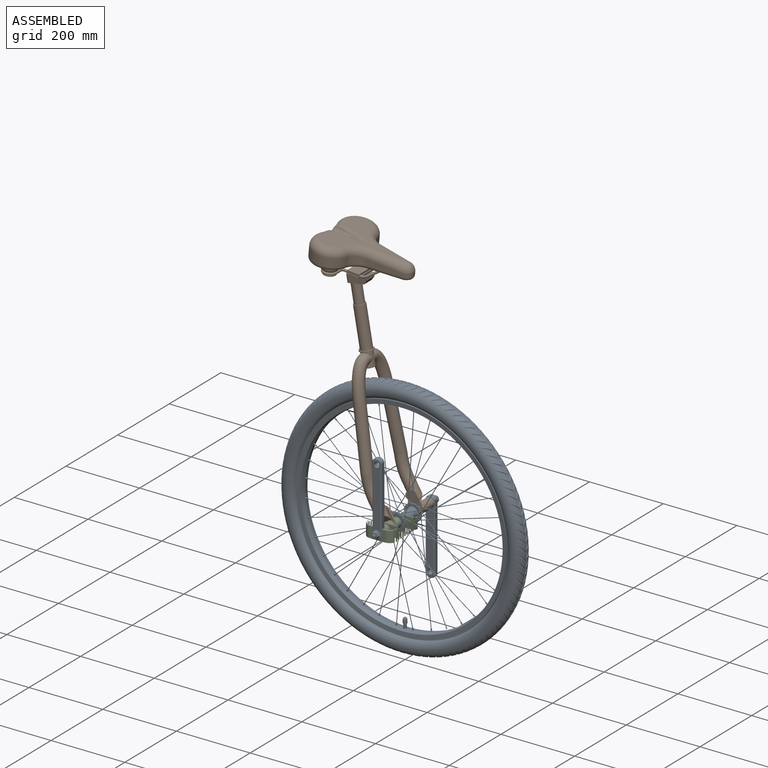
[diagram: assembled view]
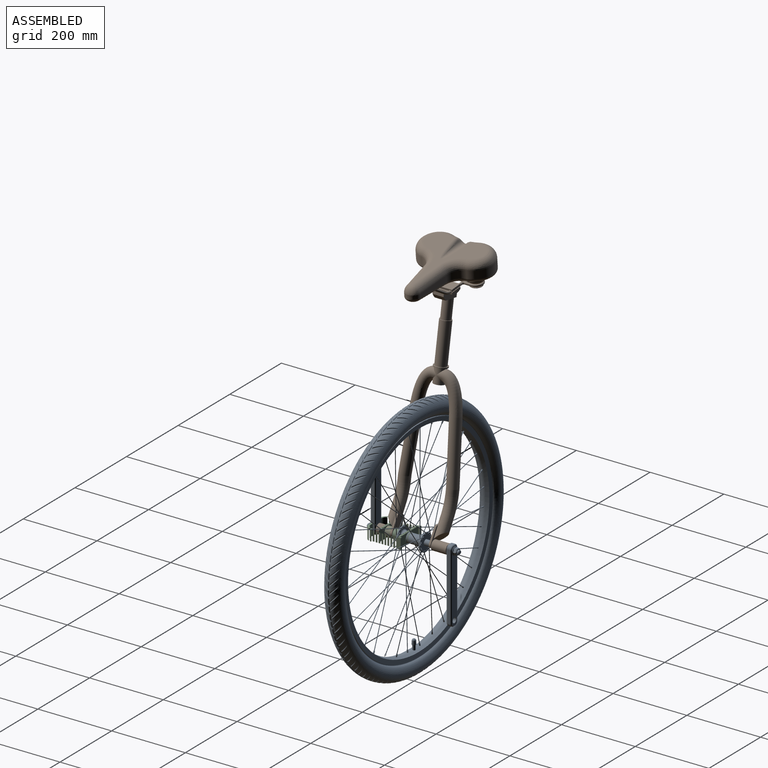
[diagram: assembled view, second angle]
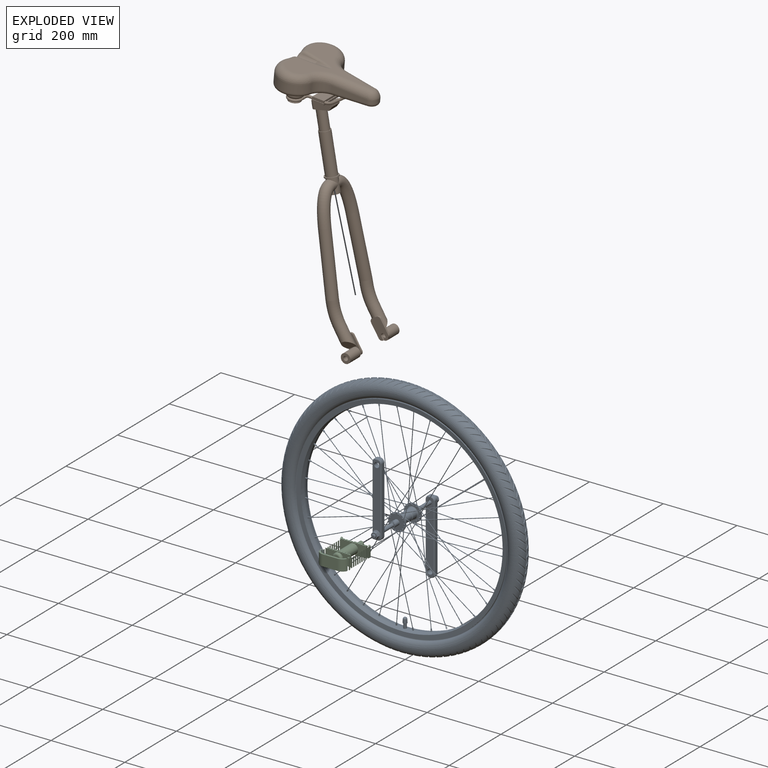
[diagram: exploded view]
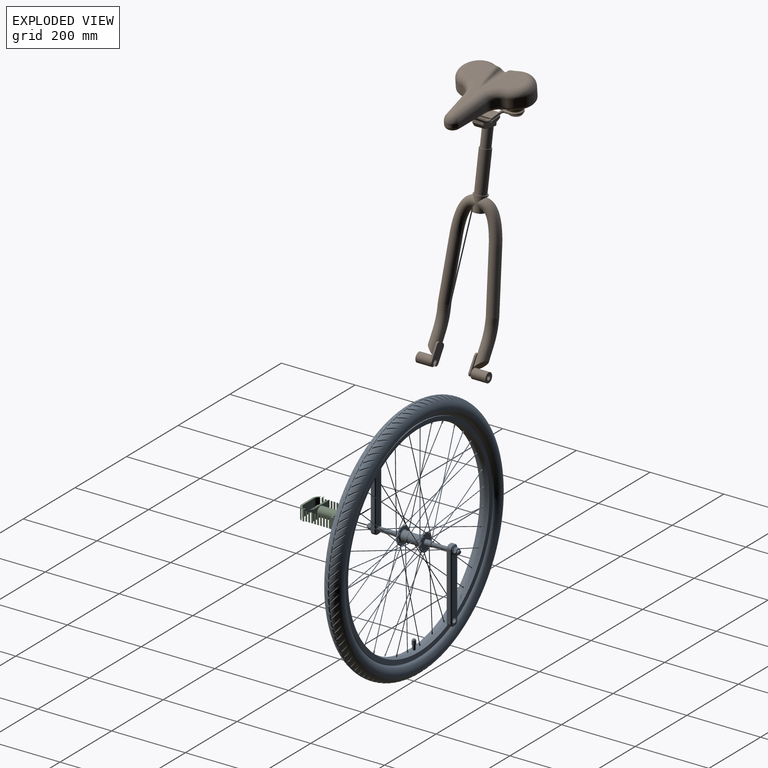
[diagram: exploded view, second angle]
FCSTD DOCUMENT  (FreeCAD 0.21R31917 (Git))
Label: 251 - MONOCYCLE
License: All rights reserved
LicenseURL: http://en.wikipedia.org/wiki/All_rights_reserved
objects: PartDesign::CoordinateSystem×6, App::Part×4, App::Link×4, Part::FeaturePython×3, App::DocumentObjectGroup×3, App::FeaturePython×1
note: 9 computed .brp shape members not serialized (recipe doc carries the construction recipe); baked Part::Feature solids carry a one-line shape summary decoded from their .brp

FEATURE [Part::FeaturePython] b_1__RODA_CJ_001_  label="1- RODA_CJ_001"  # a2plus imported part (geometry in sourceFile) (typed FeaturePython)
  a2p_Version = 0.4.60d
  fixedPosition = true
  objectType = a2pPart
  sourceFile = ./1- RODA_CJ.FCStd
  subassemblyImport = false
  timeLastImport = 1.67745e+09
  updateColors = true
FEATURE [Part::FeaturePython] b_2___GARFO_SELIM_001_  label="2 - GARFO+SELIM_001"  # a2plus imported part (geometry in sourceFile) (typed FeaturePython)
  a2p_Version = 0.4.60d
  fixedPosition = false
  objectType = a2pPart
  sourceFile = ./2 - GARFO+SELIM.FCStd
  subassemblyImport = false
  timeLastImport = 1.67745e+09
  updateColors = true
FEATURE [Part::FeaturePython] b_3__PEDAL_001_  label="3- PEDAL_001"  # a2plus imported part (geometry in sourceFile) (typed FeaturePython)
  a2p_Version = 0.4.60d
  fixedPosition = false
  objectType = a2pPart
  sourceFile = ./3- PEDAL.FCStd
  subassemblyImport = false
  timeLastImport = 1.67744e+09
  updateColors = true
FEATURE [PartDesign::CoordinateSystem] LCS_Origin
  AttacherType = Attacher::AttachEngine3D
  MapMode = 2
  Support = -> [X_Axis]
FEATURE [App::DocumentObjectGroup] Constraints
FEATURE [App::FeaturePython] Variables  # WARN: FeaturePython — macro-defined, semantics opaque (R4)
  Type = App::PropertyContainer
  move = 0
FEATURE [App::DocumentObjectGroup] Configurations
FEATURE [PartDesign::CoordinateSystem] LCS_0
  AttacherType = Attacher::AttachEngine3D
  MapMode = 2
  Support = -> [X_Axis001]
FEATURE [PartDesign::CoordinateSystem] LCS_001
  AttacherType = Attacher::AttachEngine3D
  MapMode = 2
  Support = -> [X_Axis002]
FEATURE [App::Part] Part_2
  Group = -> [LCS_001,b_2___GARFO_SELIM_001_]
  Origin = -> Origin002
FEATURE [PartDesign::CoordinateSystem] LCS_002
  AttacherType = Attacher::AttachEngine3D
  MapMode = 2
  Support = -> [X_Axis003]
FEATURE [App::Part] Part_3
  Group = -> [LCS_002,b_3__PEDAL_001_]
  Origin = -> Origin003
FEATURE [App::Link] Part001
  AssemblyType = Part::Link
  AttachedBy = #LCS_0
  AttachedTo = Parent Assembly#LCS_Origin
  LinkedObject = -> Part
  SolverId = Asm4EE
  expr: .Placement.Base.x = Variables.move * pi * 660 / 360
  expr: .Placement.Rotation.Angle = Variables.move
FEATURE [PartDesign::CoordinateSystem] LCS_1
  AttacherType = Attacher::AttachEngine3D
  MapMode = 11
  Placement = pos=(-1.24e-14,-110,170) rot=(0.57735,0.57735,0.57735;4.18879rad)
  Support = -> [b_1__RODA_CJ_001_]
FEATURE [PartDesign::CoordinateSystem] LCS_2
  AttacherType = Attacher::AttachEngine3D
  MapMode = 11
  Placement = pos=(0,110,-170) rot=(0.57735,0.57735,-0.57735;2.0944rad)
  Support = -> [b_1__RODA_CJ_001_]
FEATURE [App::Part] Part
  Group = -> [LCS_0,b_1__RODA_CJ_001_,LCS_2,LCS_1]
  Origin = -> Origin001
FEATURE [App::DocumentObjectGroup] Parts
  Group = -> [Part,Part_2,Part_3]
FEATURE [App::Link] Part_004
  AssemblyType = Part::Link
  AttachedBy = #LCS_002
  AttachedTo = Part001#LCS_1
  AttachmentOffset = pos=(0,0,0) rot=(0.57735,0.57735,0.57735;2.0944rad)
  LinkPlacement = pos=(0,-110,170) rot=(0,0,1;0rad)
  LinkedObject = -> Part_3
  Placement = pos=(0,-110,170) rot=(0,0,1;0rad)
  SolverId = Asm4EE
  expr: .Placement.Base.x = 170 * sin(Variables.move) + Variables.move * pi * 660 / 360
  expr: .Placement.Base.z = 170 * cos(Variables.move)
FEATURE [App::Link] Part_4
  AssemblyType = Part::Link
  AttachedBy = #LCS_002
  AttachedTo = Part001#LCS_2
  AttachmentOffset = pos=(0,0,0) rot=(0.57735,0.57735,0.57735;2.0944rad)
  LinkPlacement = pos=(0,110,-170) rot=(1,0,0;3.14159rad)
  LinkedObject = -> Part_3
  Placement = pos=(0,110,-170) rot=(1,0,0;3.14159rad)
  SolverId = Asm4EE
  expr: .Placement.Base.x = -170 * sin(Variables.move) + Variables.move * pi * 660 / 360
  expr: .Placement.Base.z = -170 * cos(Variables.move)
FEATURE [App::Link] Part_005
  AssemblyType = Part::Link
  AttachedBy = #LCS_001
  AttachedTo = Parent Assembly#LCS_Origin
  LinkedObject = -> Part_2
  SolverId = Asm4EE
  expr: .Placement.Base.x = Variables.move * pi * 660 / 360
FEATURE [App::Part] Model
  AssemblyType = Part::Link
  Group = -> [LCS_Origin,Constraints,Variables,Configurations,Part001,Part_004,Part_4,Part_005]
  Origin = -> Origin
  Type = Assembly
